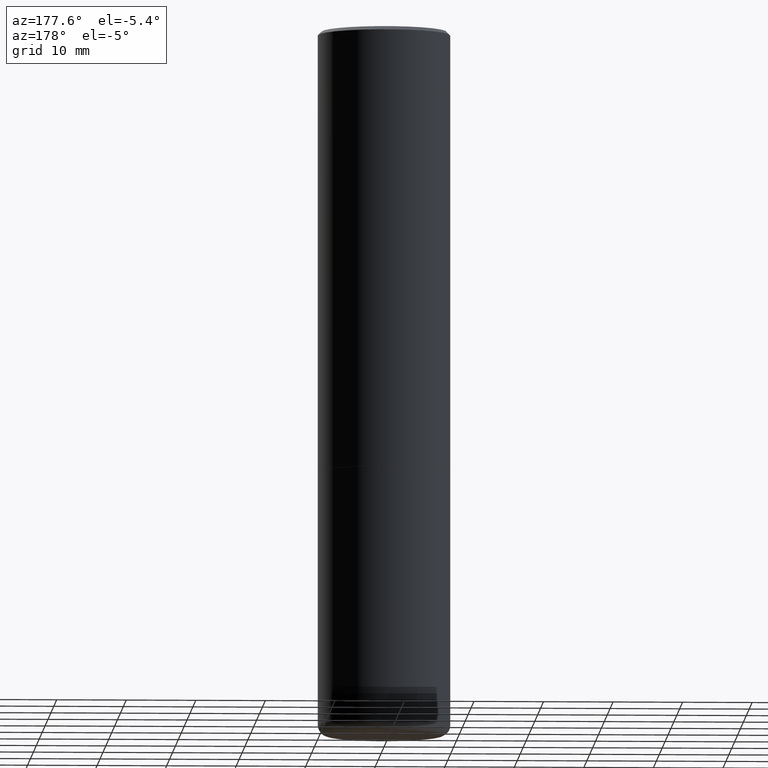
[diagram: clean part render]
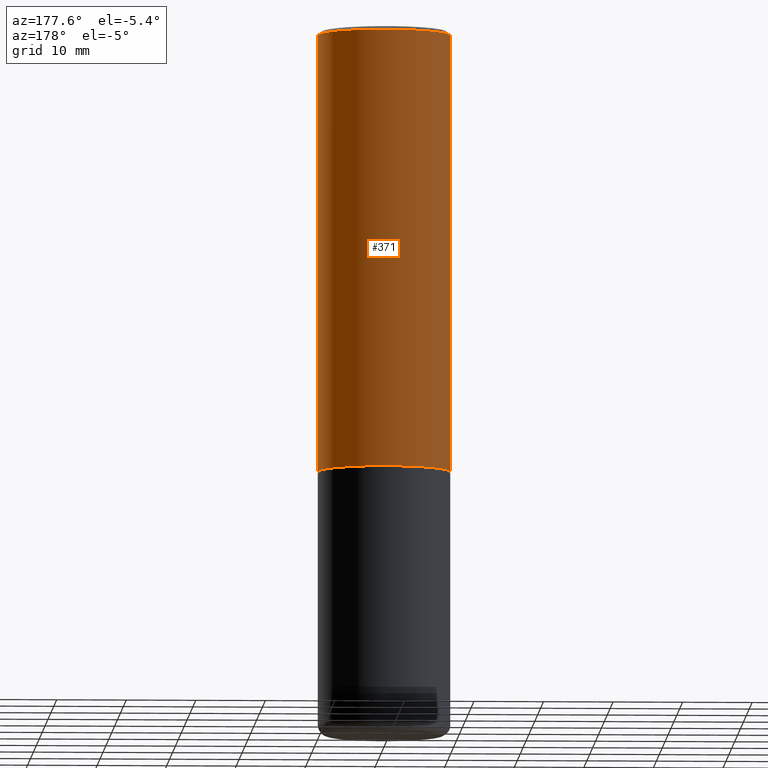
[diagram: same view with one face highlighted and labeled with its STEP entity id]
A machine part, auxiliary view. The second image highlights one B-rep face of the part: STEP entity #371.
In plain terms, the highlighted cylindrical surface (partial cylindrical patch) has radius 9.525 mm, axis along (-0, 0, 1).
Its self-contained STEP definition (entity closure, byte-faithful):
#2 = VERTEX_POINT ( 'NONE', #227 ) ;
#23 = LINE ( 'NONE', #94, #377 ) ;
#32 = DIRECTION ( 'NONE',  ( -2.445468806185136877E-29, 3.491481338843145188E-15, 1.000000000000000000 ) ) ;
#34 = CARTESIAN_POINT ( 'NONE',  ( -0.3750000000000001110, 2.548781377355487113E-15, -0.02000000000000008715 ) ) ;
#51 = ORIENTED_EDGE ( 'NONE', *, *, #218, .F. ) ;
#89 = DIRECTION ( 'NONE',  ( -2.445468806185136877E-29, 3.491481338843145188E-15, 1.000000000000000000 ) ) ;
#94 = CARTESIAN_POINT ( 'NONE',  ( 0.3750000000000002220, -2.618611004132351594E-15, 1.828566290923477043E-29 ) ) ;
#99 = CARTESIAN_POINT ( 'NONE',  ( 6.111226546656657010E-29, -8.725211865769021935E-15, -2.499000000000000110 ) ) ;
#106 = VECTOR ( 'NONE', #32, 39.37007874015748143 ) ;
#124 = ORIENTED_EDGE ( 'NONE', *, *, #388, .T. ) ;
#133 = DIRECTION ( 'NONE',  ( -2.445468806185136597E-29, 3.491481338843145583E-15, 1.000000000000000000 ) ) ;
#134 = DIRECTION ( 'NONE',  ( 1.000000000000000000, -6.982962677686265922E-15, 0.000000000000000000 ) ) ;
#155 = LINE ( 'NONE', #184, #106 ) ;
#181 = VERTEX_POINT ( 'NONE', #393 ) ;
#184 = CARTESIAN_POINT ( 'NONE',  ( -0.3750000000000002220, 2.664535259100377275E-15, -1.844600658845590719E-29 ) ) ;
#187 = AXIS2_PLACEMENT_3D ( 'NONE', #251, #357, #134 ) ;
#188 = FACE_OUTER_BOUND ( 'NONE', #256, .T. ) ;
#197 = CIRCLE ( 'NONE', #205, 0.3750000000000002776 ) ;
#205 = AXIS2_PLACEMENT_3D ( 'NONE', #99, #133, #359 ) ;
#218 = EDGE_CURVE ( 'NONE', #374, #366, #323, .T. ) ;
#225 = AXIS2_PLACEMENT_3D ( 'NONE', #354, #285, #288 ) ;
#227 = CARTESIAN_POINT ( 'NONE',  ( 0.3750000000000002776, -1.134382286990137353E-14, -2.499000000000000110 ) ) ;
#230 = EDGE_CURVE ( 'NONE', #181, #366, #155, .T. ) ;
#242 = EDGE_CURVE ( 'NONE', #2, #374, #23, .T. ) ;
#251 = CARTESIAN_POINT ( 'NONE',  ( 4.890937612370294178E-31, -6.982962677686321191E-17, -0.02000000000000008715 ) ) ;
#256 = EDGE_LOOP ( 'NONE', ( #124, #379, #51, #335 ) ) ;
#257 = CYLINDRICAL_SURFACE ( 'NONE', #225, 0.3750000000000002220 ) ;
#285 = DIRECTION ( 'NONE',  ( -2.445468806185136597E-29, 3.491481338843145583E-15, 1.000000000000000000 ) ) ;
#288 = DIRECTION ( 'NONE',  ( 1.000000000000000000, -6.982962677686266711E-15, 4.876176775795935793E-29 ) ) ;
#323 = CIRCLE ( 'NONE', #187, 0.3750000000000001110 ) ;
#335 = ORIENTED_EDGE ( 'NONE', *, *, #242, .F. ) ;
#354 = CARTESIAN_POINT ( 'NONE',  ( 0.000000000000000000, 0.000000000000000000, 0.000000000000000000 ) ) ;
#357 = DIRECTION ( 'NONE',  ( -2.445468806185136597E-29, 3.491481338843145583E-15, 1.000000000000000000 ) ) ;
#359 = DIRECTION ( 'NONE',  ( 1.000000000000000000, -6.982962677686265922E-15, 0.000000000000000000 ) ) ;
#366 = VERTEX_POINT ( 'NONE', #34 ) ;
#371 = ADVANCED_FACE ( 'NONE', ( #188 ), #257, .T. ) ;
#374 = VERTEX_POINT ( 'NONE', #387 ) ;
#377 = VECTOR ( 'NONE', #89, 39.37007874015748143 ) ;
#379 = ORIENTED_EDGE ( 'NONE', *, *, #230, .T. ) ;
#387 = CARTESIAN_POINT ( 'NONE',  ( 0.3750000000000001110, -2.642516375941188423E-15, -0.02000000000000008715 ) ) ;
#388 = EDGE_CURVE ( 'NONE', #2, #181, #197, .T. ) ;
#393 = CARTESIAN_POINT ( 'NONE',  ( -0.3750000000000002776, -1.732985487172563764E-15, -2.499000000000000110 ) ) ;